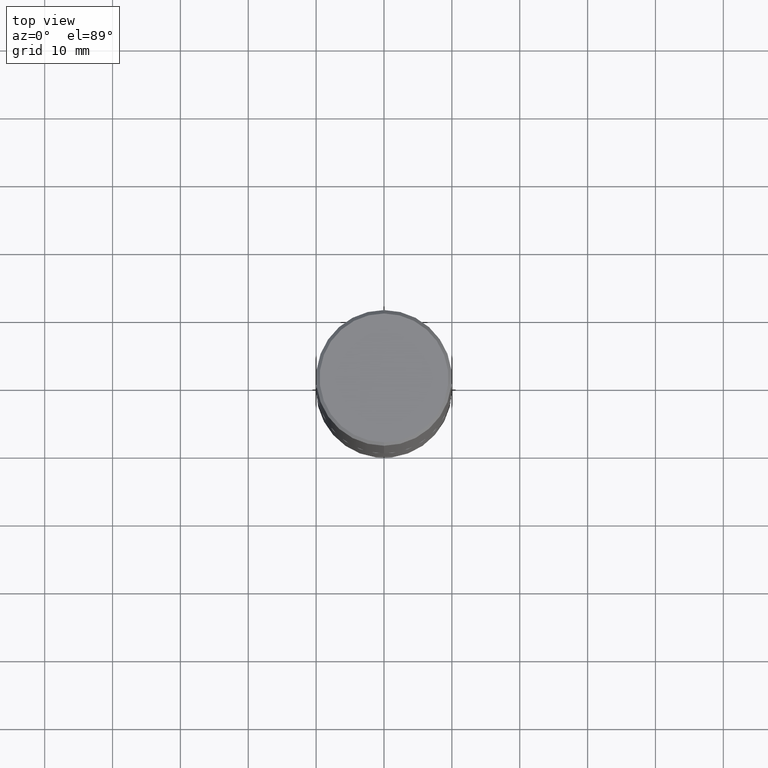
[diagram: clean part render]
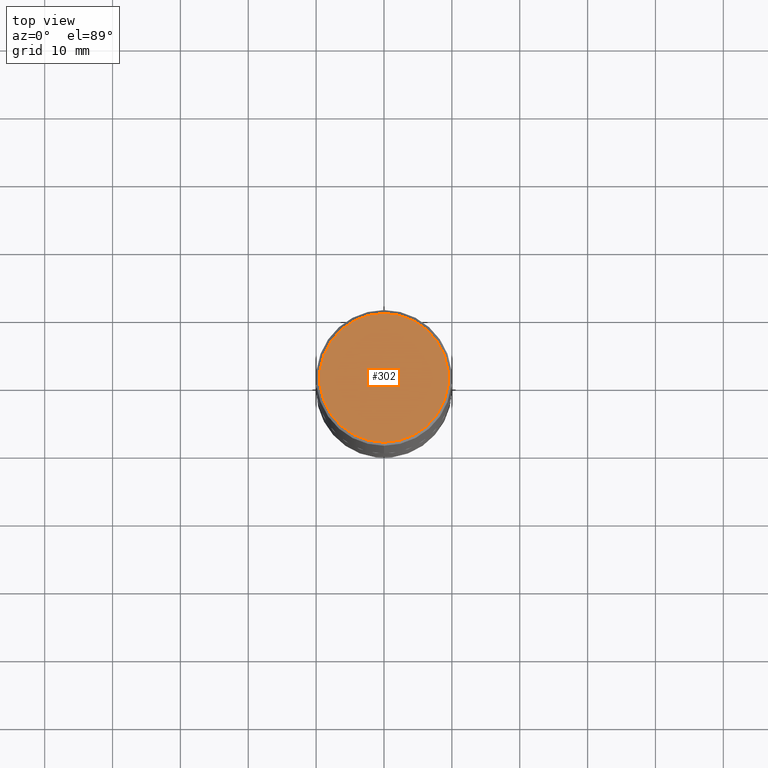
[diagram: same view with one face highlighted and labeled with its STEP entity id]
A machine part, top view. The second image highlights one B-rep face of the part: STEP entity #302.
In plain terms, the highlighted planar face has unit normal (0, -0, -1).
Its self-contained STEP definition (entity closure, byte-faithful):
#5 = EDGE_LOOP ( 'NONE', ( #394, #150 ) ) ;
#18 = CARTESIAN_POINT ( 'NONE',  ( 2.679362779428219524E-15, 0.3736999999999999211, -1.206590789053373821E-15 ) ) ;
#29 = DIRECTION ( 'NONE',  ( 6.982962677686265922E-15, 1.000000000000000000, -3.491718003723082520E-15 ) ) ;
#36 = AXIS2_PLACEMENT_3D ( 'NONE', #171, #111, #256 ) ;
#51 = CARTESIAN_POINT ( 'NONE',  ( -2.402858672686829468E-45, 3.431109773045782776E-31, 9.826422893794184205E-17 ) ) ;
#59 = AXIS2_PLACEMENT_3D ( 'NONE', #51, #179, #306 ) ;
#62 = CARTESIAN_POINT ( 'NONE',  ( 2.609533152651356620E-15, 0.3736999999999999211, -1.255722903522344693E-15 ) ) ;
#108 = EDGE_CURVE ( 'NONE', #222, #227, #338, .T. ) ;
#111 = DIRECTION ( 'NONE',  ( -2.445303543982764697E-29, 3.491718003723082520E-15, 1.000000000000000000 ) ) ;
#150 = ORIENTED_EDGE ( 'NONE', *, *, #360, .T. ) ;
#171 = CARTESIAN_POINT ( 'NONE',  ( -2.402858672686829468E-45, 3.431109773045782776E-31, 9.826422893794184205E-17 ) ) ;
#179 = DIRECTION ( 'NONE',  ( -2.445303543982764697E-29, 3.491718003723082520E-15, 1.000000000000000000 ) ) ;
#222 = VERTEX_POINT ( 'NONE', #18 ) ;
#227 = VERTEX_POINT ( 'NONE', #296 ) ;
#250 = DIRECTION ( 'NONE',  ( 2.445303543982764416E-29, -3.491718003723082520E-15, -1.000000000000000000 ) ) ;
#256 = DIRECTION ( 'NONE',  ( -6.982962677686265133E-15, -1.000000000000000000, 3.491718003723082125E-15 ) ) ;
#296 = CARTESIAN_POINT ( 'NONE',  ( -2.632373081744935132E-15, -0.3736999999999999211, 1.403119246929257505E-15 ) ) ;
#302 = ADVANCED_FACE ( 'NONE', ( #308 ), #409, .F. ) ;
#306 = DIRECTION ( 'NONE',  ( -6.982962677686265133E-15, -1.000000000000000000, 3.491718003723082125E-15 ) ) ;
#308 = FACE_OUTER_BOUND ( 'NONE', #5, .T. ) ;
#338 = CIRCLE ( 'NONE', #59, 0.3736999999999999211 ) ;
#360 = EDGE_CURVE ( 'NONE', #227, #222, #364, .T. ) ;
#364 = CIRCLE ( 'NONE', #36, 0.3736999999999999211 ) ;
#394 = ORIENTED_EDGE ( 'NONE', *, *, #108, .T. ) ;
#409 = PLANE ( 'NONE',  #412 ) ;
#412 = AXIS2_PLACEMENT_3D ( 'NONE', #62, #250, #29 ) ;